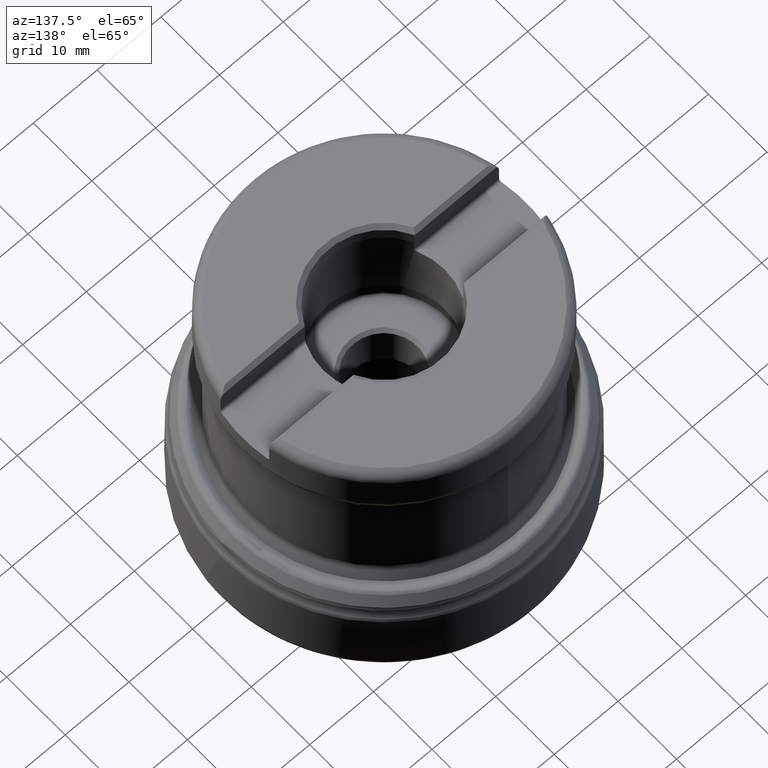
[diagram: clean part render]
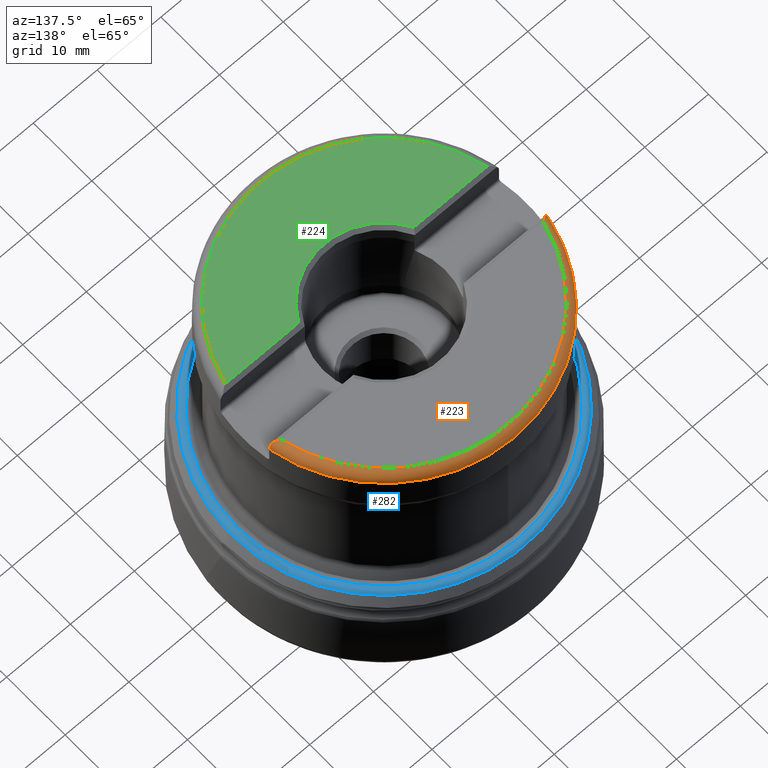
[diagram: same view with three faces highlighted in distinct colors, each labeled with its STEP entity id]
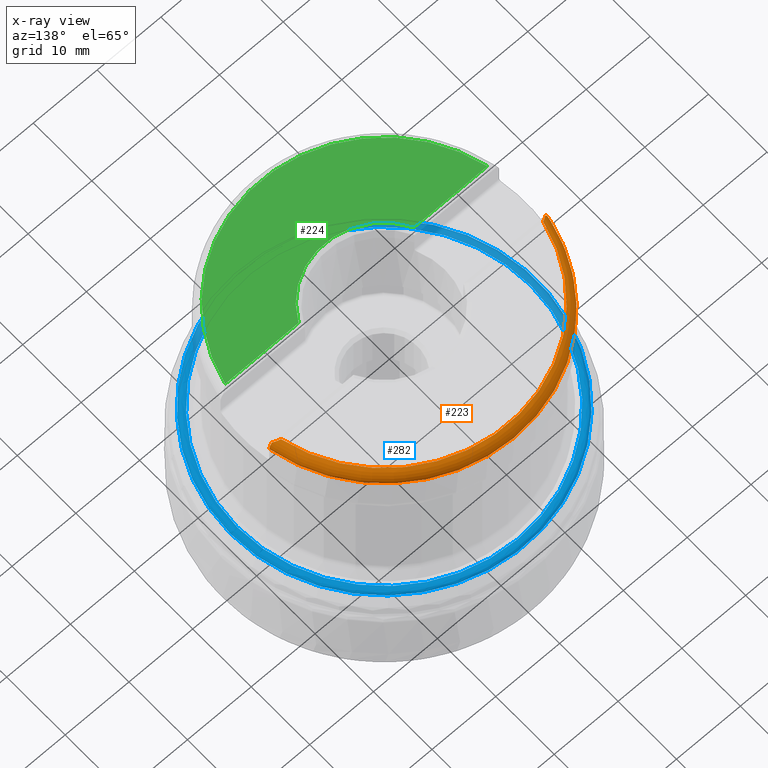
[diagram: x-ray of the same camera — body ghosted, the three highlighted faces saturated]
A machine part, auxiliary view with three faces highlighted in distinct colors.
The next image is the same camera in x-ray (body ghosted, the three faces saturated) — at least one of them is partly hidden behind the body in this view.
Their STEP definitions:

[orange] entity #223 — the highlighted toroidal blend (fillet) surface has major radius 20.225 mm and minor (blend) radius 2 mm.
#186=TOROIDAL_SURFACE('',#1140,20.225,2.);
#200=FACE_OUTER_BOUND('',#457,.T.);
#223=ADVANCED_FACE('',(#200),#186,.T.);
#457=EDGE_LOOP('',(#593,#594,#595,#596,#597,#598));
#593=ORIENTED_EDGE('',*,*,#912,.T.);
#594=ORIENTED_EDGE('',*,*,#913,.T.);
#595=ORIENTED_EDGE('',*,*,#914,.T.);
#596=ORIENTED_EDGE('',*,*,#903,.F.);
#597=ORIENTED_EDGE('',*,*,#915,.T.);
#598=ORIENTED_EDGE('',*,*,#916,.T.);
#811=VERTEX_POINT('',#1860);
#812=VERTEX_POINT('',#1862);
#819=VERTEX_POINT('',#1925);
#820=VERTEX_POINT('',#1926);
#821=VERTEX_POINT('',#1934);
#822=VERTEX_POINT('',#1955);
#903=EDGE_CURVE('',#811,#812,#1011,.T.);
#912=EDGE_CURVE('',#819,#820,#1014,.T.);
#913=EDGE_CURVE('',#820,#821,#1094,.T.);
#914=EDGE_CURVE('',#821,#812,#1095,.T.);
#915=EDGE_CURVE('',#811,#822,#1096,.T.);
#916=EDGE_CURVE('',#822,#819,#1097,.T.);
#1011=CIRCLE('',#1134,22.225);
#1014=CIRCLE('',#1139,21.0967797887081);
#1094=B_SPLINE_CURVE_WITH_KNOTS('',3,(#1927,#1928,#1929,#1930,#1931,#1932,
#1933),.UNSPECIFIED.,.F.,.F.,(4,3,4),(0.,0.837220303151918,1.),
 .UNSPECIFIED.);
#1095=B_SPLINE_CURVE_WITH_KNOTS('',3,(#1935,#1936,#1937,#1938,#1939,#1940,
#1941,#1942,#1943,#1944),.UNSPECIFIED.,.F.,.F.,(4,3,3,4),(0.,0.376771023747929,
0.898711731857338,1.),.UNSPECIFIED.);
#1096=B_SPLINE_CURVE_WITH_KNOTS('',3,(#1945,#1946,#1947,#1948,#1949,#1950,
#1951,#1952,#1953,#1954),.UNSPECIFIED.,.F.,.F.,(4,3,3,4),(0.,0.448584554281086,
0.753927563065997,1.),.UNSPECIFIED.);
#1097=B_SPLINE_CURVE_WITH_KNOTS('',3,(#1956,#1957,#1958,#1959,#1960,#1961,
#1962),.UNSPECIFIED.,.F.,.F.,(4,3,4),(0.,0.832217624562394,1.),
 .UNSPECIFIED.);
#1134=AXIS2_PLACEMENT_3D('',#1861,#1251,#1252);
#1139=AXIS2_PLACEMENT_3D('',#1924,#1262,#1263);
#1140=AXIS2_PLACEMENT_3D('',#1963,#1264,#1265);
#1251=DIRECTION('',(0.,-1.17145536458252E-15,-1.));
#1252=DIRECTION('',(0.,-1.,1.24884479710366E-15));
#1262=DIRECTION('',(0.,-1.17145536458252E-15,-1.));
#1263=DIRECTION('',(0.,1.,-1.31563091114431E-15));
#1264=DIRECTION('',(0.,1.17145536458252E-15,1.));
#1265=DIRECTION('',(0.,-1.,1.24884479710366E-15));
#1860=CARTESIAN_POINT('',(-21.8293380568445,4.17500000000005,42.65));
#1861=CARTESIAN_POINT('',(0.,4.99625712994447E-14,42.65));
#1862=CARTESIAN_POINT('',(21.8293380568446,4.17500000000005,42.65));
#1924=CARTESIAN_POINT('',(0.,5.20711909556932E-14,44.45));
#1925=CARTESIAN_POINT('',(-20.5492942081533,4.77500000000005,44.45));
#1926=CARTESIAN_POINT('',(20.5492942081533,4.77500000000005,44.45));
#1927=CARTESIAN_POINT('',(20.5492942081533,4.77500000000005,44.45));
#1928=CARTESIAN_POINT('',(20.8405479044769,4.65117394600913,44.3261739460091));
#1929=CARTESIAN_POINT('',(21.0962803161751,4.48048504372063,44.1554850437206));
#1930=CARTESIAN_POINT('',(21.303967487852,4.29027392727771,43.9652739272777));
#1931=CARTESIAN_POINT('',(21.3449610549215,4.25272980697262,43.9277298069726));
#1932=CARTESIAN_POINT('',(21.3843036087422,4.21425711036659,43.8892571103665));
#1933=CARTESIAN_POINT('',(21.4219513583614,4.17500000000005,43.85));
#1934=CARTESIAN_POINT('',(21.4219513583614,4.17500000000005,43.85));
#1935=CARTESIAN_POINT('',(21.4219513583614,4.17500000000005,43.85));
#1936=CARTESIAN_POINT('',(21.5199407292163,4.17500000000005,43.7217603032552));
#1937=CARTESIAN_POINT('',(21.6029074456128,4.17500000000005,43.5805388619185));
#1938=CARTESIAN_POINT('',(21.6670259304722,4.17500000000005,43.4324302648652));
#1939=CARTESIAN_POINT('',(21.7557647652759,4.17500000000005,43.2274506188902));
#1940=CARTESIAN_POINT('',(21.8100320221803,4.17500000000005,43.0040800576923));
#1941=CARTESIAN_POINT('',(21.8249509282185,4.17500000000005,42.7812153850567));
#1942=CARTESIAN_POINT('',(21.82787394264,4.17500000000005,42.7375502094418));
#1943=CARTESIAN_POINT('',(21.8293380568446,4.17500000000005,42.6937629018096));
#1944=CARTESIAN_POINT('',(21.8293380568446,4.17500000000005,42.65));
#1945=CARTESIAN_POINT('',(-21.8293380568445,4.17500000000005,42.65));
#1946=CARTESIAN_POINT('',(-21.8293380568445,4.17500000000005,42.8417435150046));
#1947=CARTESIAN_POINT('',(-21.800642855575,4.17500000000005,43.035494981409));
#1948=CARTESIAN_POINT('',(-21.7451742608107,4.17500000000005,43.2190400999527));
#1949=CARTESIAN_POINT('',(-21.7070744107077,4.17500000000005,43.3451121869303));
#1950=CARTESIAN_POINT('',(-21.6560313523743,4.17500000000005,43.467948347772));
#1951=CARTESIAN_POINT('',(-21.5936447366564,4.17500000000005,43.5839383467893));
#1952=CARTESIAN_POINT('',(-21.5436466593816,4.17500000000005,43.676895415661));
#1953=CARTESIAN_POINT('',(-21.4860362968998,4.17500000000005,43.766131382288));
#1954=CARTESIAN_POINT('',(-21.4219513583614,4.17500000000005,43.85));
#1955=CARTESIAN_POINT('',(-21.4219513583614,4.17500000000005,43.85));
#1956=CARTESIAN_POINT('',(-21.4219513583614,4.17500000000005,43.85));
#1957=CARTESIAN_POINT('',(-21.2322763809206,4.37278317690956,44.0477831769095));
#1958=CARTESIAN_POINT('',(-20.9960194118546,4.55364902188793,44.2286490218879));
#1959=CARTESIAN_POINT('',(-20.7224203938835,4.69392828722896,44.3689282872289));
#1960=CARTESIAN_POINT('',(-20.6663847352939,4.72265880343526,44.3976588034352));
#1961=CARTESIAN_POINT('',(-20.6086138403839,4.74978035102778,44.4247803510277));
#1962=CARTESIAN_POINT('',(-20.5492942081537,4.7750000000004,44.4500000000003));
#1963=CARTESIAN_POINT('',(0.,4.99625712994447E-14,42.65));

[blue] entity #282 — the highlighted face is a SurfaceOfRevolution surface.
#124=SURFACE_OF_REVOLUTION('',#1121,#145);
#145=AXIS1_PLACEMENT('',#2373,#1485);
#282=ADVANCED_FACE('',(#434,#435),#124,.F.);
#434=FACE_BOUND('',#554,.T.);
#435=FACE_BOUND('',#555,.T.);
#554=EDGE_LOOP('',(#782));
#555=EDGE_LOOP('',(#783));
#782=ORIENTED_EDGE('',*,*,#998,.T.);
#783=ORIENTED_EDGE('',*,*,#999,.F.);
#884=VERTEX_POINT('',#2357);
#885=VERTEX_POINT('',#2361);
#998=EDGE_CURVE('',#884,#884,#1057,.T.);
#999=EDGE_CURVE('',#885,#885,#1058,.T.);
#1057=CIRCLE('',#1232,23.9713218116288);
#1058=CIRCLE('',#1233,22.9040951508993);
#1121=B_SPLINE_CURVE_WITH_KNOTS('',3,(#2362,#2363,#2364,#2365,#2366,#2367,
#2368,#2369,#2370,#2371,#2372),.UNSPECIFIED.,.F.,.F.,(4,1,1,1,1,1,1,1,4),
(0.,0.125,0.25,0.375,0.5,0.625,0.75,0.875,1.),.UNSPECIFIED.);
#1232=AXIS2_PLACEMENT_3D('',#2356,#1479,#1480);
#1233=AXIS2_PLACEMENT_3D('',#2360,#1483,#1484);
#1479=DIRECTION('',(0.,0.,1.));
#1480=DIRECTION('',(1.,0.,0.));
#1483=DIRECTION('',(0.,0.,1.));
#1484=DIRECTION('',(1.,0.,0.));
#1485=DIRECTION('',(0.,0.,1.));
#2356=CARTESIAN_POINT('',(0.,0.,15.7702155184173));
#2357=CARTESIAN_POINT('',(23.9713218116288,0.,15.7702155184173));
#2360=CARTESIAN_POINT('',(0.,0.,16.074686600729));
#2361=CARTESIAN_POINT('',(22.9040951508993,0.,16.074686600729));
#2362=CARTESIAN_POINT('',(22.9032864445961,-0.192462491198841,16.0746864239956));
#2363=CARTESIAN_POINT('',(22.9441025772916,-0.187110730028696,16.0957638103775));
#2364=CARTESIAN_POINT('',(23.0322423353423,-0.175903305262224,16.1325986392437));
#2365=CARTESIAN_POINT('',(23.1811817284765,-0.160915126071657,16.1650534644821));
#2366=CARTESIAN_POINT('',(23.3407371555201,-0.151323912452742,16.1688085488936));
#2367=CARTESIAN_POINT('',(23.5017670314731,-0.150006159528119,16.1405987127503));
#2368=CARTESIAN_POINT('',(23.6537140315764,-0.158168461157639,16.0810103470509));
#2369=CARTESIAN_POINT('',(23.786955771481,-0.174778465703438,15.9945981536721));
#2370=CARTESIAN_POINT('',(23.8948780655808,-0.196775186133742,15.8886002997989));
#2371=CARTESIAN_POINT('',(23.9481848968341,-0.212165145607043,15.8101935747189));
#2372=CARTESIAN_POINT('',(23.9703187975929,-0.219285518074162,15.7702155184173));
#2373=CARTESIAN_POINT('',(0.,0.,0.));

[green] entity #224 — the highlighted planar face has unit normal (0, -0, -1).
#168=PLANE('',#1142);
#201=FACE_OUTER_BOUND('',#458,.T.);
#224=ADVANCED_FACE('',(#201),#168,.F.);
#306=LINE('',#1964,#333);
#307=LINE('',#1968,#334);
#333=VECTOR('',#1266,1.);
#334=VECTOR('',#1269,1.);
#458=EDGE_LOOP('',(#599,#600,#601,#602));
#599=ORIENTED_EDGE('',*,*,#909,.F.);
#600=ORIENTED_EDGE('',*,*,#917,.T.);
#601=ORIENTED_EDGE('',*,*,#918,.T.);
#602=ORIENTED_EDGE('',*,*,#919,.T.);
#816=VERTEX_POINT('',#1902);
#817=VERTEX_POINT('',#1904);
#823=VERTEX_POINT('',#1965);
#824=VERTEX_POINT('',#1967);
#909=EDGE_CURVE('',#816,#817,#1013,.T.);
#917=EDGE_CURVE('',#816,#823,#306,.T.);
#918=EDGE_CURVE('',#823,#824,#1015,.T.);
#919=EDGE_CURVE('',#824,#817,#307,.T.);
#1013=CIRCLE('',#1137,21.0967797887081);
#1015=CIRCLE('',#1141,10.2123019237294);
#1137=AXIS2_PLACEMENT_3D('',#1903,#1258,#1259);
#1141=AXIS2_PLACEMENT_3D('',#1966,#1267,#1268);
#1142=AXIS2_PLACEMENT_3D('',#1969,#1270,#1271);
#1258=DIRECTION('',(0.,-1.17145536458252E-15,-1.));
#1259=DIRECTION('',(0.,1.,-1.31563091114431E-15));
#1266=DIRECTION('',(-1.,0.,0.));
#1267=DIRECTION('',(0.,-1.17145536458252E-15,-1.));
#1268=DIRECTION('',(0.,1.,-1.35892846798506E-15));
#1269=DIRECTION('',(-1.,0.,0.));
#1270=DIRECTION('',(0.,-1.17145536458252E-15,-1.));
#1271=DIRECTION('',(0.,1.,-1.17267306976032E-15));
#1902=CARTESIAN_POINT('',(20.5492942081533,-4.77499999999994,44.45));
#1903=CARTESIAN_POINT('',(0.,5.20711909556932E-14,44.45));
#1904=CARTESIAN_POINT('',(-20.5492942081533,-4.77499999999994,44.45));
#1964=CARTESIAN_POINT('',(8.65827484392424,-4.77499999999994,44.45));
#1965=CARTESIAN_POINT('',(9.02720807234477,-4.77499999999994,44.45));
#1966=CARTESIAN_POINT('',(0.,5.20711909556932E-14,44.45));
#1967=CARTESIAN_POINT('',(-9.02720807234477,-4.77499999999994,44.45));
#1968=CARTESIAN_POINT('',(-20.6795428492325,-4.77499999999994,44.45));
#1969=CARTESIAN_POINT('',(0.,5.20711909556932E-14,44.45));